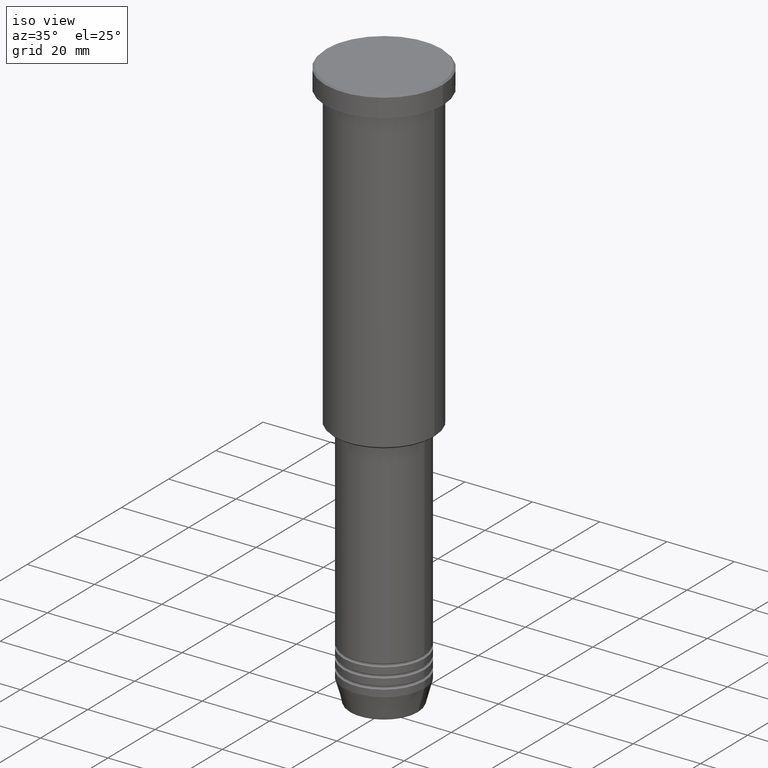
[diagram: clean part render]
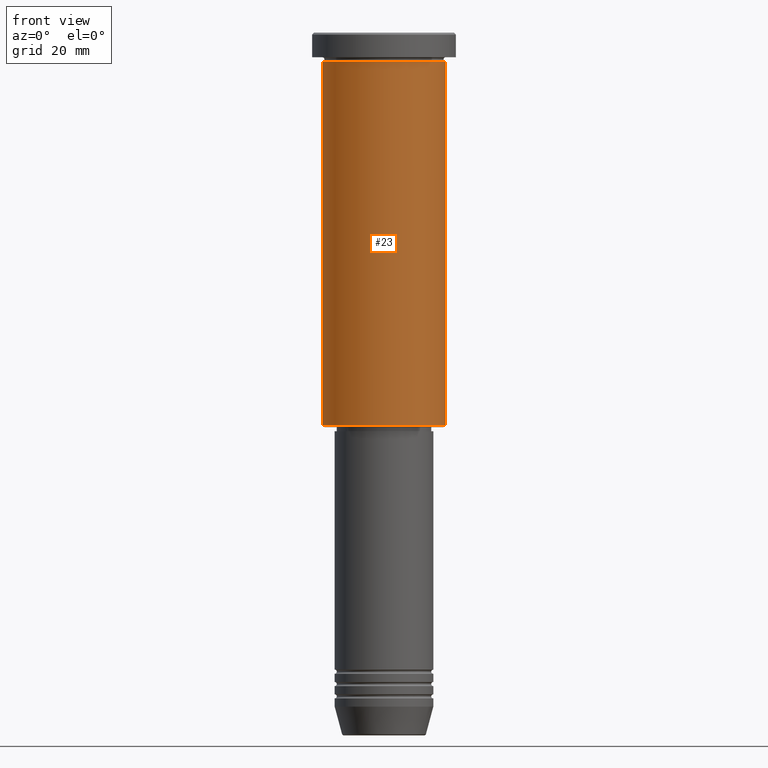
[diagram: tour spotlight — one face highlighted and labeled with its STEP entity id]
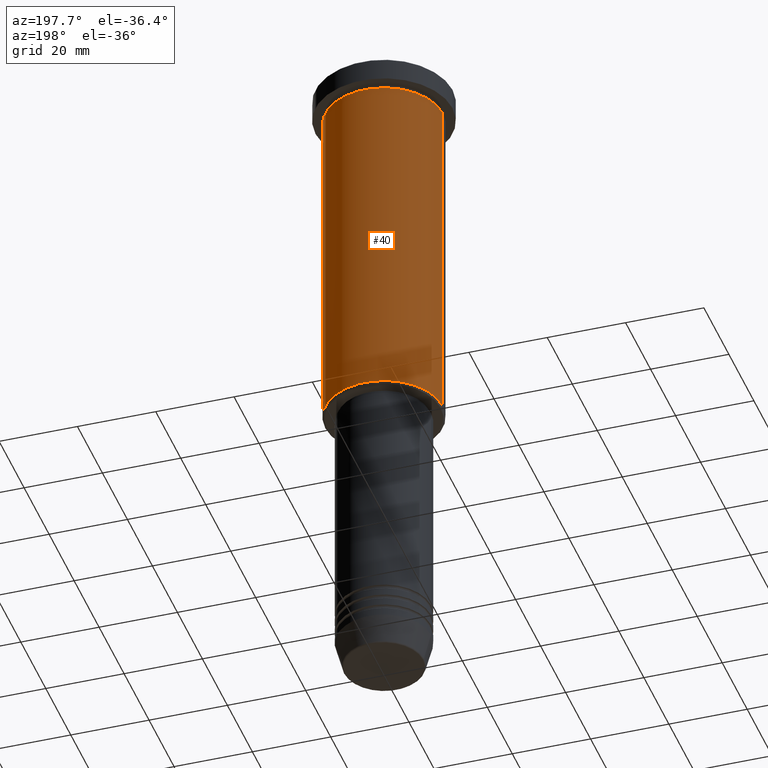
[diagram: tour spotlight — one face highlighted and labeled with its STEP entity id]
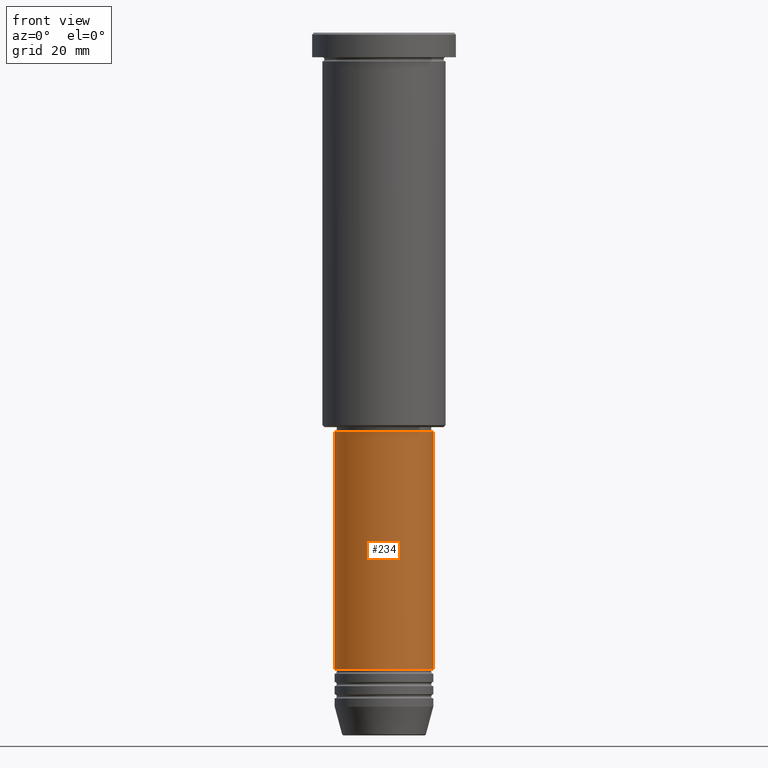
[diagram: tour spotlight — one face highlighted and labeled with its STEP entity id]
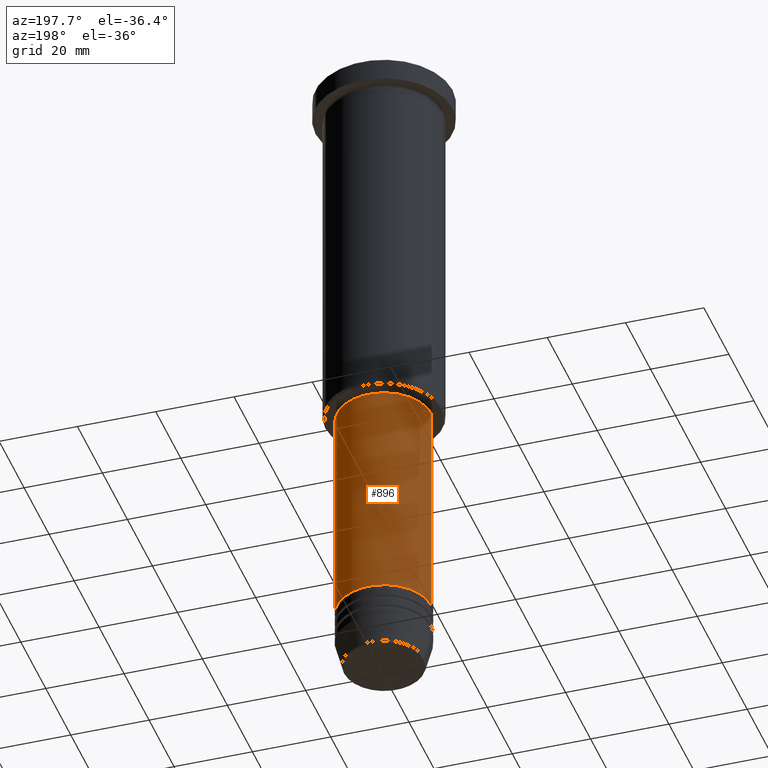
[diagram: tour spotlight — one face highlighted and labeled with its STEP entity id]
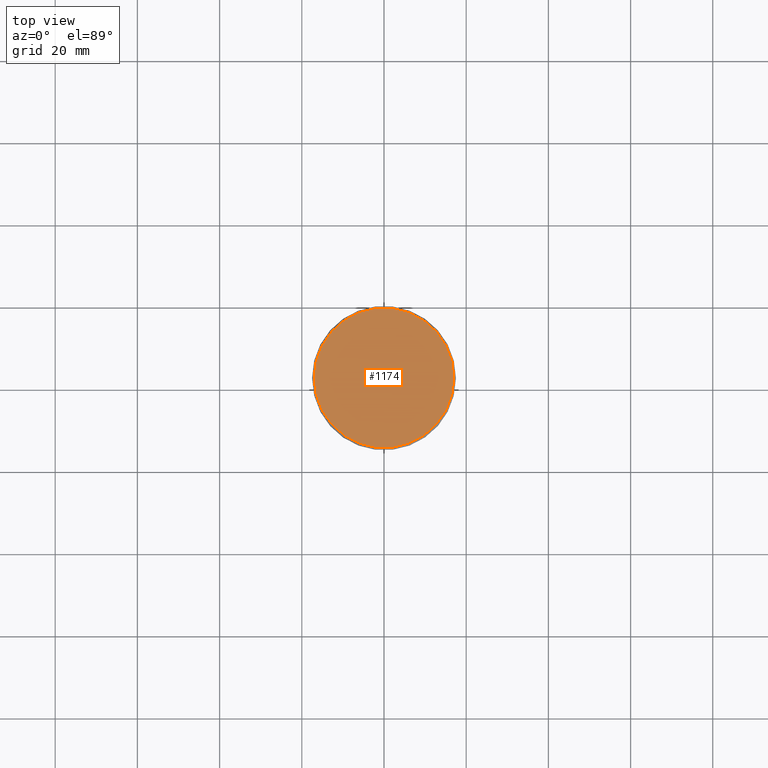
[diagram: tour spotlight — one face highlighted and labeled with its STEP entity id]
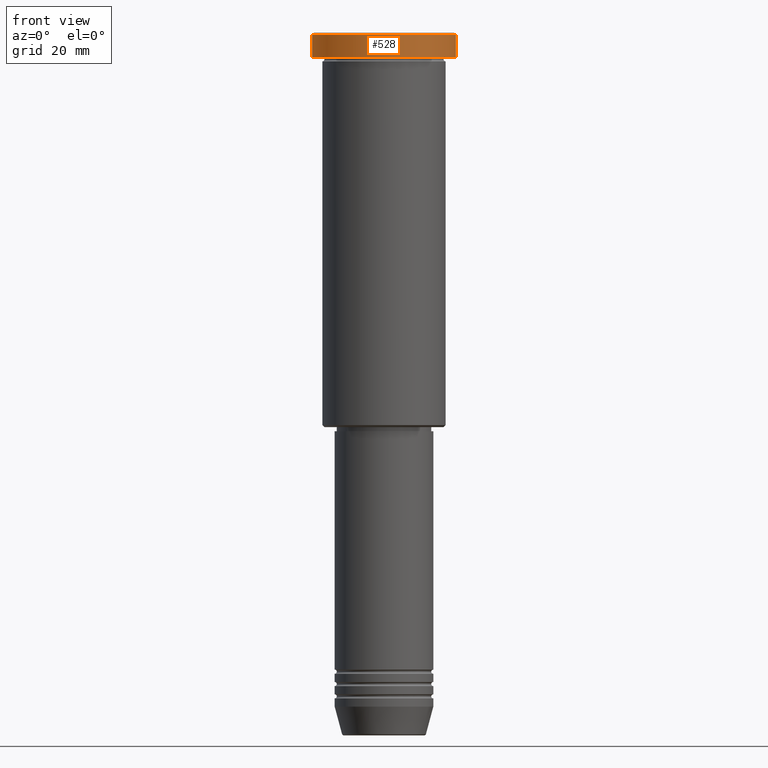
[diagram: tour spotlight — one face highlighted and labeled with its STEP entity id]
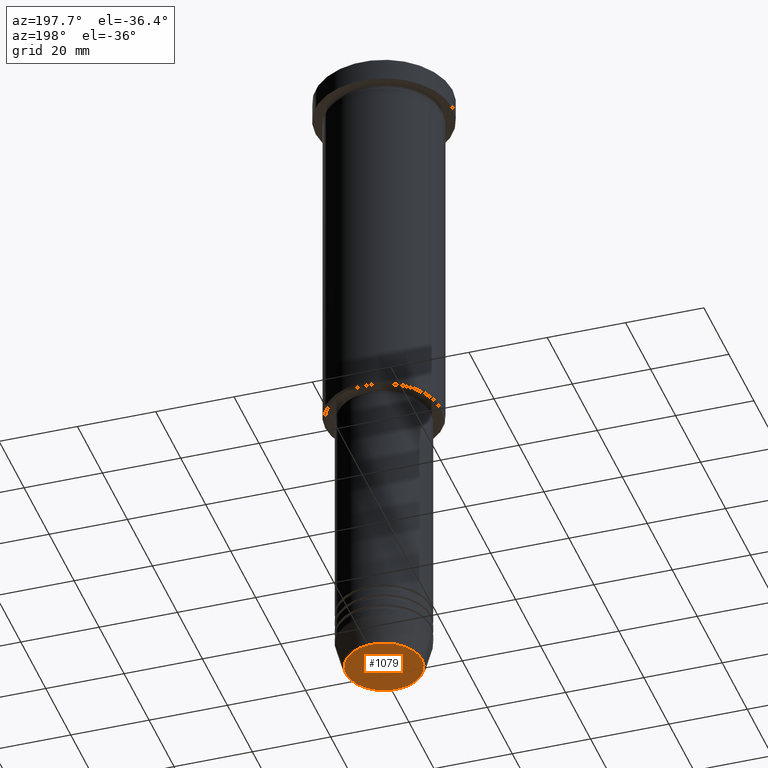
[diagram: tour spotlight — one face highlighted and labeled with its STEP entity id]
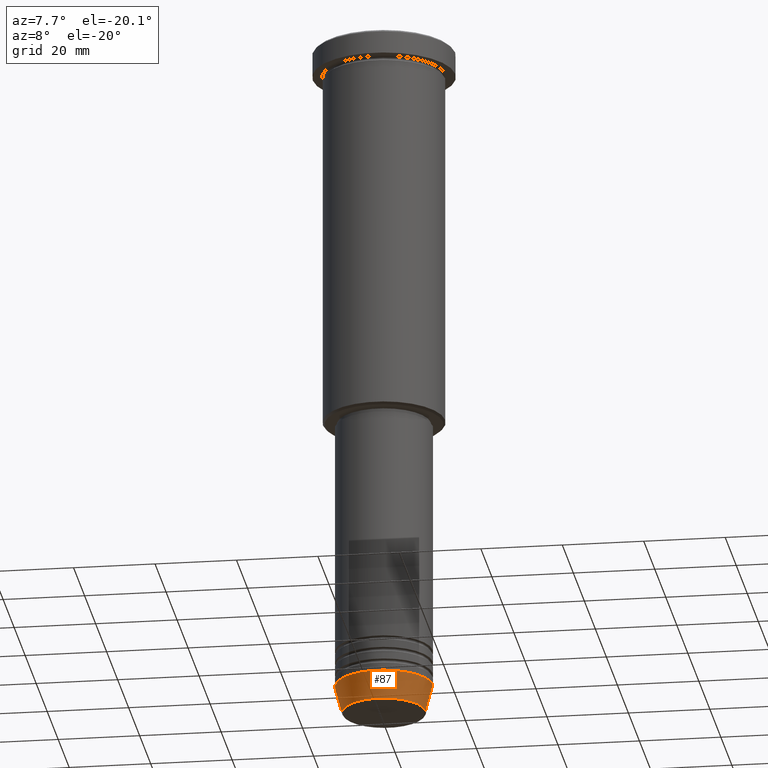
[diagram: tour spotlight — one face highlighted and labeled with its STEP entity id]
A machine part: a face-by-face anatomy tour. The part has 43 B-rep faces; the first image is the clean iso view, then the 8 largest visible faces are spotlighted one at a time (largest first), each with its STEP entity span.

Face 1 — front view, entity #23. In plain terms, the highlighted cylindrical surface (partial cylindrical patch) has radius 15 mm, axis along (-0, -0, 1).
Definition (entity closure, byte-faithful):
#4 = CARTESIAN_POINT ( 'NONE',  ( 0.000000000000000000, 0.000000000000000000, -95.50000000000001421 ) ) ;
#8 = VERTEX_POINT ( 'NONE', #741 ) ;
#9 = CARTESIAN_POINT ( 'NONE',  ( 15.00000000000000000, 0.000000000000000000, -6.999999999999995559 ) ) ;
#23 = ADVANCED_FACE ( 'NONE', ( #418 ), #881, .T. ) ;
#118 = AXIS2_PLACEMENT_3D ( 'NONE', #325, #773, #431 ) ;
#127 = DIRECTION ( 'NONE',  ( 1.000000000000000000, 0.000000000000000000, 0.000000000000000000 ) ) ;
#239 = EDGE_LOOP ( 'NONE', ( #983, #539, #1067, #394 ) ) ;
#240 = EDGE_CURVE ( 'NONE', #8, #443, #472, .T. ) ;
#291 = DIRECTION ( 'NONE',  ( -0.000000000000000000, -0.000000000000000000, 1.000000000000000000 ) ) ;
#325 = CARTESIAN_POINT ( 'NONE',  ( 0.000000000000000000, 0.000000000000000000, 0.000000000000000000 ) ) ;
#346 = DIRECTION ( 'NONE',  ( -0.000000000000000000, -0.000000000000000000, 1.000000000000000000 ) ) ;
#394 = ORIENTED_EDGE ( 'NONE', *, *, #1071, .F. ) ;
#401 = VERTEX_POINT ( 'NONE', #1116 ) ;
#418 = FACE_OUTER_BOUND ( 'NONE', #239, .T. ) ;
#431 = DIRECTION ( 'NONE',  ( 1.000000000000000000, 0.000000000000000000, 0.000000000000000000 ) ) ;
#436 = EDGE_CURVE ( 'NONE', #1029, #8, #984, .T. ) ;
#443 = VERTEX_POINT ( 'NONE', #9 ) ;
#472 = LINE ( 'NONE', #1128, #654 ) ;
#473 = CARTESIAN_POINT ( 'NONE',  ( -15.00000000000000000, 1.836970198721029589E-15, -95.50000000000001421 ) ) ;
#475 = DIRECTION ( 'NONE',  ( -1.000000000000000000, 0.000000000000000000, 0.000000000000000000 ) ) ;
#524 = AXIS2_PLACEMENT_3D ( 'NONE', #574, #1030, #127 ) ;
#539 = ORIENTED_EDGE ( 'NONE', *, *, #436, .T. ) ;
#574 = CARTESIAN_POINT ( 'NONE',  ( 0.000000000000000000, 0.000000000000000000, -6.999999999999995559 ) ) ;
#654 = VECTOR ( 'NONE', #1003, 1000.000000000000000 ) ;
#667 = AXIS2_PLACEMENT_3D ( 'NONE', #4, #291, #475 ) ;
#690 = VECTOR ( 'NONE', #346, 1000.000000000000000 ) ;
#741 = CARTESIAN_POINT ( 'NONE',  ( 15.00000000000000000, 0.000000000000000000, -95.50000000000001421 ) ) ;
#742 = EDGE_CURVE ( 'NONE', #1029, #401, #956, .T. ) ;
#773 = DIRECTION ( 'NONE',  ( -0.000000000000000000, -0.000000000000000000, 1.000000000000000000 ) ) ;
#880 = CARTESIAN_POINT ( 'NONE',  ( -15.00000000000000000, 1.836970198721029589E-15, 0.000000000000000000 ) ) ;
#881 = CYLINDRICAL_SURFACE ( 'NONE', #118, 15.00000000000000000 ) ;
#956 = LINE ( 'NONE', #880, #690 ) ;
#983 = ORIENTED_EDGE ( 'NONE', *, *, #742, .F. ) ;
#984 = CIRCLE ( 'NONE', #667, 15.00000000000000000 ) ;
#985 = CIRCLE ( 'NONE', #524, 15.00000000000000000 ) ;
#1003 = DIRECTION ( 'NONE',  ( -0.000000000000000000, -0.000000000000000000, 1.000000000000000000 ) ) ;
#1029 = VERTEX_POINT ( 'NONE', #473 ) ;
#1030 = DIRECTION ( 'NONE',  ( -0.000000000000000000, -0.000000000000000000, 1.000000000000000000 ) ) ;
#1067 = ORIENTED_EDGE ( 'NONE', *, *, #240, .T. ) ;
#1071 = EDGE_CURVE ( 'NONE', #401, #443, #985, .T. ) ;
#1116 = CARTESIAN_POINT ( 'NONE',  ( -15.00000000000000000, 1.836970198721029589E-15, -6.999999999999995559 ) ) ;
#1128 = CARTESIAN_POINT ( 'NONE',  ( 15.00000000000000000, 0.000000000000000000, 0.000000000000000000 ) ) ;

Face 2 — auxiliary view, entity #40. In plain terms, the highlighted cylindrical surface (partial cylindrical patch) has radius 15 mm, axis along (-0, -0, 1).
Definition (entity closure, byte-faithful):
#8 = VERTEX_POINT ( 'NONE', #741 ) ;
#9 = CARTESIAN_POINT ( 'NONE',  ( 15.00000000000000000, 0.000000000000000000, -6.999999999999995559 ) ) ;
#40 = ADVANCED_FACE ( 'NONE', ( #702 ), #1168, .T. ) ;
#98 = CARTESIAN_POINT ( 'NONE',  ( 0.000000000000000000, 0.000000000000000000, -6.999999999999995559 ) ) ;
#121 = AXIS2_PLACEMENT_3D ( 'NONE', #951, #523, #439 ) ;
#124 = DIRECTION ( 'NONE',  ( 1.000000000000000000, 0.000000000000000000, 0.000000000000000000 ) ) ;
#206 = DIRECTION ( 'NONE',  ( -0.000000000000000000, -0.000000000000000000, 1.000000000000000000 ) ) ;
#240 = EDGE_CURVE ( 'NONE', #8, #443, #472, .T. ) ;
#243 = CARTESIAN_POINT ( 'NONE',  ( 0.000000000000000000, 0.000000000000000000, 0.000000000000000000 ) ) ;
#257 = ORIENTED_EDGE ( 'NONE', *, *, #737, .T. ) ;
#346 = DIRECTION ( 'NONE',  ( -0.000000000000000000, -0.000000000000000000, 1.000000000000000000 ) ) ;
#348 = DIRECTION ( 'NONE',  ( -0.000000000000000000, -0.000000000000000000, 1.000000000000000000 ) ) ;
#401 = VERTEX_POINT ( 'NONE', #1116 ) ;
#428 = EDGE_CURVE ( 'NONE', #443, #401, #1157, .T. ) ;
#439 = DIRECTION ( 'NONE',  ( -1.000000000000000000, 0.000000000000000000, 0.000000000000000000 ) ) ;
#442 = EDGE_LOOP ( 'NONE', ( #257, #1082, #905, #617 ) ) ;
#443 = VERTEX_POINT ( 'NONE', #9 ) ;
#472 = LINE ( 'NONE', #1128, #654 ) ;
#473 = CARTESIAN_POINT ( 'NONE',  ( -15.00000000000000000, 1.836970198721029589E-15, -95.50000000000001421 ) ) ;
#523 = DIRECTION ( 'NONE',  ( -0.000000000000000000, -0.000000000000000000, 1.000000000000000000 ) ) ;
#617 = ORIENTED_EDGE ( 'NONE', *, *, #240, .F. ) ;
#639 = CIRCLE ( 'NONE', #121, 15.00000000000000000 ) ;
#654 = VECTOR ( 'NONE', #1003, 1000.000000000000000 ) ;
#690 = VECTOR ( 'NONE', #346, 1000.000000000000000 ) ;
#702 = FACE_OUTER_BOUND ( 'NONE', #442, .T. ) ;
#737 = EDGE_CURVE ( 'NONE', #8, #1029, #639, .T. ) ;
#741 = CARTESIAN_POINT ( 'NONE',  ( 15.00000000000000000, 0.000000000000000000, -95.50000000000001421 ) ) ;
#742 = EDGE_CURVE ( 'NONE', #1029, #401, #956, .T. ) ;
#880 = CARTESIAN_POINT ( 'NONE',  ( -15.00000000000000000, 1.836970198721029589E-15, 0.000000000000000000 ) ) ;
#905 = ORIENTED_EDGE ( 'NONE', *, *, #428, .F. ) ;
#951 = CARTESIAN_POINT ( 'NONE',  ( 0.000000000000000000, 0.000000000000000000, -95.50000000000001421 ) ) ;
#956 = LINE ( 'NONE', #880, #690 ) ;
#1003 = DIRECTION ( 'NONE',  ( -0.000000000000000000, -0.000000000000000000, 1.000000000000000000 ) ) ;
#1029 = VERTEX_POINT ( 'NONE', #473 ) ;
#1082 = ORIENTED_EDGE ( 'NONE', *, *, #742, .T. ) ;
#1085 = AXIS2_PLACEMENT_3D ( 'NONE', #98, #206, #124 ) ;
#1116 = CARTESIAN_POINT ( 'NONE',  ( -15.00000000000000000, 1.836970198721029589E-15, -6.999999999999995559 ) ) ;
#1121 = AXIS2_PLACEMENT_3D ( 'NONE', #243, #348, #1146 ) ;
#1128 = CARTESIAN_POINT ( 'NONE',  ( 15.00000000000000000, 0.000000000000000000, 0.000000000000000000 ) ) ;
#1146 = DIRECTION ( 'NONE',  ( 1.000000000000000000, 0.000000000000000000, 0.000000000000000000 ) ) ;
#1157 = CIRCLE ( 'NONE', #1085, 15.00000000000000000 ) ;
#1168 = CYLINDRICAL_SURFACE ( 'NONE', #1121, 15.00000000000000000 ) ;

Face 3 — front view, entity #234. In plain terms, the highlighted cylindrical surface (partial cylindrical patch) has radius 12 mm, axis along (-0, -0, 1).
Definition (entity closure, byte-faithful):
#1 = DIRECTION ( 'NONE',  ( -0.000000000000000000, -0.000000000000000000, 1.000000000000000000 ) ) ;
#29 = ORIENTED_EDGE ( 'NONE', *, *, #888, .F. ) ;
#36 = VECTOR ( 'NONE', #508, 1000.000000000000000 ) ;
#78 = CIRCLE ( 'NONE', #619, 12.00000000000000000 ) ;
#111 = CARTESIAN_POINT ( 'NONE',  ( 0.000000000000000000, 0.000000000000000000, -154.9999999999999716 ) ) ;
#234 = ADVANCED_FACE ( 'NONE', ( #550 ), #921, .T. ) ;
#252 = ORIENTED_EDGE ( 'NONE', *, *, #313, .T. ) ;
#311 = DIRECTION ( 'NONE',  ( -0.000000000000000000, -0.000000000000000000, 1.000000000000000000 ) ) ;
#313 = EDGE_CURVE ( 'NONE', #751, #911, #78, .T. ) ;
#331 = CARTESIAN_POINT ( 'NONE',  ( 0.000000000000000000, 0.000000000000000000, -97.00000000000000000 ) ) ;
#378 = AXIS2_PLACEMENT_3D ( 'NONE', #820, #311, #391 ) ;
#391 = DIRECTION ( 'NONE',  ( 1.000000000000000000, 0.000000000000000000, 0.000000000000000000 ) ) ;
#397 = CIRCLE ( 'NONE', #566, 12.00000000000000000 ) ;
#417 = DIRECTION ( 'NONE',  ( 1.000000000000000000, 0.000000000000000000, 0.000000000000000000 ) ) ;
#424 = CARTESIAN_POINT ( 'NONE',  ( -12.00000000000000000, 1.469576158976823947E-15, -154.9999999999999716 ) ) ;
#456 = DIRECTION ( 'NONE',  ( -0.000000000000000000, -0.000000000000000000, 1.000000000000000000 ) ) ;
#495 = VERTEX_POINT ( 'NONE', #1143 ) ;
#501 = DIRECTION ( 'NONE',  ( -0.000000000000000000, -0.000000000000000000, 1.000000000000000000 ) ) ;
#508 = DIRECTION ( 'NONE',  ( -0.000000000000000000, -0.000000000000000000, 1.000000000000000000 ) ) ;
#550 = FACE_OUTER_BOUND ( 'NONE', #650, .T. ) ;
#551 = CARTESIAN_POINT ( 'NONE',  ( -12.00000000000000000, 1.469576158976823947E-15, 0.000000000000000000 ) ) ;
#566 = AXIS2_PLACEMENT_3D ( 'NONE', #331, #501, #417 ) ;
#619 = AXIS2_PLACEMENT_3D ( 'NONE', #111, #456, #1075 ) ;
#645 = CARTESIAN_POINT ( 'NONE',  ( 12.00000000000000000, 0.000000000000000000, -154.9999999999999716 ) ) ;
#650 = EDGE_LOOP ( 'NONE', ( #29, #252, #1169, #705 ) ) ;
#704 = EDGE_CURVE ( 'NONE', #744, #495, #397, .T. ) ;
#705 = ORIENTED_EDGE ( 'NONE', *, *, #704, .F. ) ;
#744 = VERTEX_POINT ( 'NONE', #1077 ) ;
#745 = EDGE_CURVE ( 'NONE', #911, #495, #869, .T. ) ;
#751 = VERTEX_POINT ( 'NONE', #424 ) ;
#820 = CARTESIAN_POINT ( 'NONE',  ( 0.000000000000000000, 0.000000000000000000, 0.000000000000000000 ) ) ;
#869 = LINE ( 'NONE', #1171, #36 ) ;
#888 = EDGE_CURVE ( 'NONE', #751, #744, #1094, .T. ) ;
#900 = VECTOR ( 'NONE', #1, 1000.000000000000000 ) ;
#911 = VERTEX_POINT ( 'NONE', #645 ) ;
#921 = CYLINDRICAL_SURFACE ( 'NONE', #378, 12.00000000000000000 ) ;
#1075 = DIRECTION ( 'NONE',  ( 1.000000000000000000, 0.000000000000000000, 0.000000000000000000 ) ) ;
#1077 = CARTESIAN_POINT ( 'NONE',  ( -12.00000000000000000, 1.469576158976823947E-15, -97.00000000000000000 ) ) ;
#1094 = LINE ( 'NONE', #551, #900 ) ;
#1143 = CARTESIAN_POINT ( 'NONE',  ( 12.00000000000000000, 0.000000000000000000, -97.00000000000000000 ) ) ;
#1169 = ORIENTED_EDGE ( 'NONE', *, *, #745, .T. ) ;
#1171 = CARTESIAN_POINT ( 'NONE',  ( 12.00000000000000000, 0.000000000000000000, 0.000000000000000000 ) ) ;

Face 4 — auxiliary view, entity #896. In plain terms, the highlighted cylindrical surface (partial cylindrical patch) has radius 12 mm, axis along (-0, -0, 1).
Definition (entity closure, byte-faithful):
#1 = DIRECTION ( 'NONE',  ( -0.000000000000000000, -0.000000000000000000, 1.000000000000000000 ) ) ;
#36 = VECTOR ( 'NONE', #508, 1000.000000000000000 ) ;
#62 = EDGE_LOOP ( 'NONE', ( #469, #877, #503, #891 ) ) ;
#108 = FACE_OUTER_BOUND ( 'NONE', #62, .T. ) ;
#191 = DIRECTION ( 'NONE',  ( 1.000000000000000000, 0.000000000000000000, 0.000000000000000000 ) ) ;
#198 = AXIS2_PLACEMENT_3D ( 'NONE', #840, #230, #480 ) ;
#230 = DIRECTION ( 'NONE',  ( -0.000000000000000000, -0.000000000000000000, 1.000000000000000000 ) ) ;
#250 = CIRCLE ( 'NONE', #198, 12.00000000000000000 ) ;
#302 = EDGE_CURVE ( 'NONE', #495, #744, #1104, .T. ) ;
#424 = CARTESIAN_POINT ( 'NONE',  ( -12.00000000000000000, 1.469576158976823947E-15, -154.9999999999999716 ) ) ;
#469 = ORIENTED_EDGE ( 'NONE', *, *, #1043, .T. ) ;
#480 = DIRECTION ( 'NONE',  ( 1.000000000000000000, 0.000000000000000000, 0.000000000000000000 ) ) ;
#495 = VERTEX_POINT ( 'NONE', #1143 ) ;
#503 = ORIENTED_EDGE ( 'NONE', *, *, #302, .F. ) ;
#508 = DIRECTION ( 'NONE',  ( -0.000000000000000000, -0.000000000000000000, 1.000000000000000000 ) ) ;
#551 = CARTESIAN_POINT ( 'NONE',  ( -12.00000000000000000, 1.469576158976823947E-15, 0.000000000000000000 ) ) ;
#554 = CARTESIAN_POINT ( 'NONE',  ( 0.000000000000000000, 0.000000000000000000, 0.000000000000000000 ) ) ;
#575 = AXIS2_PLACEMENT_3D ( 'NONE', #904, #643, #698 ) ;
#630 = CYLINDRICAL_SURFACE ( 'NONE', #1086, 12.00000000000000000 ) ;
#643 = DIRECTION ( 'NONE',  ( -0.000000000000000000, -0.000000000000000000, 1.000000000000000000 ) ) ;
#645 = CARTESIAN_POINT ( 'NONE',  ( 12.00000000000000000, 0.000000000000000000, -154.9999999999999716 ) ) ;
#698 = DIRECTION ( 'NONE',  ( 1.000000000000000000, 0.000000000000000000, 0.000000000000000000 ) ) ;
#744 = VERTEX_POINT ( 'NONE', #1077 ) ;
#745 = EDGE_CURVE ( 'NONE', #911, #495, #869, .T. ) ;
#751 = VERTEX_POINT ( 'NONE', #424 ) ;
#840 = CARTESIAN_POINT ( 'NONE',  ( 0.000000000000000000, 0.000000000000000000, -154.9999999999999716 ) ) ;
#869 = LINE ( 'NONE', #1171, #36 ) ;
#877 = ORIENTED_EDGE ( 'NONE', *, *, #888, .T. ) ;
#888 = EDGE_CURVE ( 'NONE', #751, #744, #1094, .T. ) ;
#891 = ORIENTED_EDGE ( 'NONE', *, *, #745, .F. ) ;
#896 = ADVANCED_FACE ( 'NONE', ( #108 ), #630, .T. ) ;
#900 = VECTOR ( 'NONE', #1, 1000.000000000000000 ) ;
#904 = CARTESIAN_POINT ( 'NONE',  ( 0.000000000000000000, 0.000000000000000000, -97.00000000000000000 ) ) ;
#911 = VERTEX_POINT ( 'NONE', #645 ) ;
#996 = DIRECTION ( 'NONE',  ( -0.000000000000000000, -0.000000000000000000, 1.000000000000000000 ) ) ;
#1043 = EDGE_CURVE ( 'NONE', #911, #751, #250, .T. ) ;
#1077 = CARTESIAN_POINT ( 'NONE',  ( -12.00000000000000000, 1.469576158976823947E-15, -97.00000000000000000 ) ) ;
#1086 = AXIS2_PLACEMENT_3D ( 'NONE', #554, #996, #191 ) ;
#1094 = LINE ( 'NONE', #551, #900 ) ;
#1104 = CIRCLE ( 'NONE', #575, 12.00000000000000000 ) ;
#1143 = CARTESIAN_POINT ( 'NONE',  ( 12.00000000000000000, 0.000000000000000000, -97.00000000000000000 ) ) ;
#1171 = CARTESIAN_POINT ( 'NONE',  ( 12.00000000000000000, 0.000000000000000000, 0.000000000000000000 ) ) ;

Face 5 — top view, entity #1174. In plain terms, the highlighted planar face has unit normal (0, -0, 1).
Definition (entity closure, byte-faithful):
#71 = CARTESIAN_POINT ( 'NONE',  ( 0.000000000000000000, 0.000000000000000000, 0.000000000000000000 ) ) ;
#86 = FACE_OUTER_BOUND ( 'NONE', #1092, .T. ) ;
#153 = AXIS2_PLACEMENT_3D ( 'NONE', #1076, #235, #172 ) ;
#172 = DIRECTION ( 'NONE',  ( 1.000000000000000000, 0.000000000000000000, 0.000000000000000000 ) ) ;
#194 = EDGE_CURVE ( 'NONE', #368, #371, #786, .T. ) ;
#235 = DIRECTION ( 'NONE',  ( 0.000000000000000000, -0.000000000000000000, 1.000000000000000000 ) ) ;
#249 = CARTESIAN_POINT ( 'NONE',  ( -17.00000000000001421, 0.000000000000000000, 0.000000000000000000 ) ) ;
#309 = DIRECTION ( 'NONE',  ( 1.000000000000000000, 0.000000000000000000, 0.000000000000000000 ) ) ;
#368 = VERTEX_POINT ( 'NONE', #249 ) ;
#371 = VERTEX_POINT ( 'NONE', #468 ) ;
#400 = DIRECTION ( 'NONE',  ( -0.000000000000000000, -0.000000000000000000, 1.000000000000000000 ) ) ;
#423 = PLANE ( 'NONE',  #153 ) ;
#455 = AXIS2_PLACEMENT_3D ( 'NONE', #1132, #400, #309 ) ;
#468 = CARTESIAN_POINT ( 'NONE',  ( 17.00000000000001421, 2.112515728529185250E-15, 0.000000000000000000 ) ) ;
#491 = DIRECTION ( 'NONE',  ( 1.000000000000000000, 0.000000000000000000, 0.000000000000000000 ) ) ;
#576 = ORIENTED_EDGE ( 'NONE', *, *, #194, .T. ) ;
#786 = CIRCLE ( 'NONE', #1059, 17.00000000000001421 ) ;
#901 = CIRCLE ( 'NONE', #455, 17.00000000000001421 ) ;
#945 = DIRECTION ( 'NONE',  ( -0.000000000000000000, -0.000000000000000000, 1.000000000000000000 ) ) ;
#1036 = EDGE_CURVE ( 'NONE', #371, #368, #901, .T. ) ;
#1059 = AXIS2_PLACEMENT_3D ( 'NONE', #71, #945, #491 ) ;
#1076 = CARTESIAN_POINT ( 'NONE',  ( 0.000000000000000000, 0.000000000000000000, 0.000000000000000000 ) ) ;
#1092 = EDGE_LOOP ( 'NONE', ( #576, #1115 ) ) ;
#1115 = ORIENTED_EDGE ( 'NONE', *, *, #1036, .T. ) ;
#1132 = CARTESIAN_POINT ( 'NONE',  ( 0.000000000000000000, 0.000000000000000000, 0.000000000000000000 ) ) ;
#1174 = ADVANCED_FACE ( 'NONE', ( #86 ), #423, .T. ) ;

Face 6 — front view, entity #528. In plain terms, the highlighted cylindrical surface (partial cylindrical patch) has radius 17.5 mm, axis along (-0, -0, 1).
Definition (entity closure, byte-faithful):
#44 = CARTESIAN_POINT ( 'NONE',  ( 17.50000000000000000, 0.000000000000000000, -0.4999999999999727995 ) ) ;
#48 = EDGE_LOOP ( 'NONE', ( #672, #466, #847, #103 ) ) ;
#65 = DIRECTION ( 'NONE',  ( -0.000000000000000000, -0.000000000000000000, 1.000000000000000000 ) ) ;
#73 = CARTESIAN_POINT ( 'NONE',  ( -17.50000000000000000, 2.143131898507868248E-15, -5.999999999999995559 ) ) ;
#77 = EDGE_CURVE ( 'NONE', #562, #156, #855, .T. ) ;
#102 = CARTESIAN_POINT ( 'NONE',  ( -17.50000000000000000, 2.143131898507868248E-15, -0.4999999999999727995 ) ) ;
#103 = ORIENTED_EDGE ( 'NONE', *, *, #353, .T. ) ;
#152 = DIRECTION ( 'NONE',  ( 0.000000000000000000, 0.000000000000000000, -1.000000000000000000 ) ) ;
#156 = VERTEX_POINT ( 'NONE', #102 ) ;
#210 = CARTESIAN_POINT ( 'NONE',  ( 17.50000000000000000, 0.000000000000000000, 0.000000000000000000 ) ) ;
#255 = CARTESIAN_POINT ( 'NONE',  ( 17.50000000000000000, 0.000000000000000000, -5.999999999999995559 ) ) ;
#318 = DIRECTION ( 'NONE',  ( -0.000000000000000000, -0.000000000000000000, 1.000000000000000000 ) ) ;
#334 = DIRECTION ( 'NONE',  ( 1.000000000000000000, 0.000000000000000000, 0.000000000000000000 ) ) ;
#353 = EDGE_CURVE ( 'NONE', #1064, #156, #561, .T. ) ;
#466 = ORIENTED_EDGE ( 'NONE', *, *, #709, .T. ) ;
#470 = VECTOR ( 'NONE', #568, 1000.000000000000000 ) ;
#528 = ADVANCED_FACE ( 'NONE', ( #852 ), #1131, .T. ) ;
#561 = CIRCLE ( 'NONE', #620, 17.50000000000000000 ) ;
#562 = VERTEX_POINT ( 'NONE', #73 ) ;
#568 = DIRECTION ( 'NONE',  ( -0.000000000000000000, -0.000000000000000000, 1.000000000000000000 ) ) ;
#601 = CARTESIAN_POINT ( 'NONE',  ( 0.000000000000000000, 0.000000000000000000, -0.4999999999999727995 ) ) ;
#620 = AXIS2_PLACEMENT_3D ( 'NONE', #601, #152, #693 ) ;
#627 = LINE ( 'NONE', #210, #470 ) ;
#672 = ORIENTED_EDGE ( 'NONE', *, *, #77, .F. ) ;
#687 = VERTEX_POINT ( 'NONE', #255 ) ;
#693 = DIRECTION ( 'NONE',  ( 1.000000000000000000, 0.000000000000000000, 0.000000000000000000 ) ) ;
#701 = CARTESIAN_POINT ( 'NONE',  ( 0.000000000000000000, 0.000000000000000000, -5.999999999999995559 ) ) ;
#709 = EDGE_CURVE ( 'NONE', #562, #687, #789, .T. ) ;
#763 = CARTESIAN_POINT ( 'NONE',  ( 0.000000000000000000, 0.000000000000000000, 0.000000000000000000 ) ) ;
#789 = CIRCLE ( 'NONE', #1025, 17.50000000000000000 ) ;
#845 = AXIS2_PLACEMENT_3D ( 'NONE', #763, #318, #334 ) ;
#847 = ORIENTED_EDGE ( 'NONE', *, *, #968, .T. ) ;
#852 = FACE_OUTER_BOUND ( 'NONE', #48, .T. ) ;
#855 = LINE ( 'NONE', #1072, #1137 ) ;
#862 = DIRECTION ( 'NONE',  ( -0.000000000000000000, -0.000000000000000000, 1.000000000000000000 ) ) ;
#968 = EDGE_CURVE ( 'NONE', #687, #1064, #627, .T. ) ;
#1025 = AXIS2_PLACEMENT_3D ( 'NONE', #701, #65, #1165 ) ;
#1064 = VERTEX_POINT ( 'NONE', #44 ) ;
#1072 = CARTESIAN_POINT ( 'NONE',  ( -17.50000000000000000, 2.143131898507868248E-15, 0.000000000000000000 ) ) ;
#1131 = CYLINDRICAL_SURFACE ( 'NONE', #845, 17.50000000000000000 ) ;
#1137 = VECTOR ( 'NONE', #862, 1000.000000000000000 ) ;
#1165 = DIRECTION ( 'NONE',  ( 1.000000000000000000, 0.000000000000000000, 0.000000000000000000 ) ) ;

Face 7 — auxiliary view, entity #1079. In plain terms, the highlighted planar face has unit normal (0, -0, 1).
Definition (entity closure, byte-faithful):
#15 = CARTESIAN_POINT ( 'NONE',  ( -9.740692158992667160, 1.222463696683475393E-15, -170.9999999999999716 ) ) ;
#58 = AXIS2_PLACEMENT_3D ( 'NONE', #403, #653, #757 ) ;
#116 = CARTESIAN_POINT ( 'NONE',  ( 9.740692158992667160, 0.000000000000000000, -170.9999999999999716 ) ) ;
#190 = DIRECTION ( 'NONE',  ( 0.000000000000000000, 0.000000000000000000, -1.000000000000000000 ) ) ;
#221 = EDGE_CURVE ( 'NONE', #449, #294, #748, .T. ) ;
#270 = CARTESIAN_POINT ( 'NONE',  ( 0.000000000000000000, 0.000000000000000000, -170.9999999999999716 ) ) ;
#272 = EDGE_LOOP ( 'NONE', ( #661, #590 ) ) ;
#276 = DIRECTION ( 'NONE',  ( 1.000000000000000000, 0.000000000000000000, 0.000000000000000000 ) ) ;
#286 = AXIS2_PLACEMENT_3D ( 'NONE', #713, #190, #1089 ) ;
#294 = VERTEX_POINT ( 'NONE', #116 ) ;
#298 = PLANE ( 'NONE',  #58 ) ;
#403 = CARTESIAN_POINT ( 'NONE',  ( 0.000000000000000000, 0.000000000000000000, -170.9999999999999716 ) ) ;
#449 = VERTEX_POINT ( 'NONE', #15 ) ;
#484 = CIRCLE ( 'NONE', #830, 9.740692158992667160 ) ;
#590 = ORIENTED_EDGE ( 'NONE', *, *, #221, .T. ) ;
#653 = DIRECTION ( 'NONE',  ( 0.000000000000000000, -0.000000000000000000, 1.000000000000000000 ) ) ;
#661 = ORIENTED_EDGE ( 'NONE', *, *, #943, .T. ) ;
#713 = CARTESIAN_POINT ( 'NONE',  ( 0.000000000000000000, 0.000000000000000000, -170.9999999999999716 ) ) ;
#748 = CIRCLE ( 'NONE', #286, 9.740692158992667160 ) ;
#757 = DIRECTION ( 'NONE',  ( 1.000000000000000000, 0.000000000000000000, 0.000000000000000000 ) ) ;
#830 = AXIS2_PLACEMENT_3D ( 'NONE', #270, #894, #276 ) ;
#894 = DIRECTION ( 'NONE',  ( 0.000000000000000000, 0.000000000000000000, -1.000000000000000000 ) ) ;
#936 = FACE_OUTER_BOUND ( 'NONE', #272, .T. ) ;
#943 = EDGE_CURVE ( 'NONE', #294, #449, #484, .T. ) ;
#1079 = ADVANCED_FACE ( 'NONE', ( #936 ), #298, .F. ) ;
#1089 = DIRECTION ( 'NONE',  ( 1.000000000000000000, 0.000000000000000000, 0.000000000000000000 ) ) ;

Face 8 — auxiliary view, entity #87. In plain terms, the highlighted conical surface has half-angle 15 deg.
Definition (entity closure, byte-faithful):
#17 = VECTOR ( 'NONE', #818, 1000.000000000000000 ) ;
#22 = EDGE_LOOP ( 'NONE', ( #497, #1007, #201, #246 ) ) ;
#27 = DIRECTION ( 'NONE',  ( 1.000000000000000000, 0.000000000000000000, 0.000000000000000000 ) ) ;
#47 = DIRECTION ( 'NONE',  ( 1.000000000000000000, 0.000000000000000000, 0.000000000000000000 ) ) ;
#56 = FACE_OUTER_BOUND ( 'NONE', #22, .T. ) ;
#85 = VERTEX_POINT ( 'NONE', #779 ) ;
#87 = ADVANCED_FACE ( 'NONE', ( #56 ), #766, .T. ) ;
#155 = DIRECTION ( 'NONE',  ( -0.000000000000000000, -0.000000000000000000, 1.000000000000000000 ) ) ;
#188 = CARTESIAN_POINT ( 'NONE',  ( 12.00000000000000000, 0.000000000000000000, -164.0000000000000000 ) ) ;
#201 = ORIENTED_EDGE ( 'NONE', *, *, #409, .T. ) ;
#225 = DIRECTION ( 'NONE',  ( -0.2588190451025213501, 3.169619151431772337E-17, 0.9659258262890680902 ) ) ;
#232 = AXIS2_PLACEMENT_3D ( 'NONE', #924, #490, #27 ) ;
#246 = ORIENTED_EDGE ( 'NONE', *, *, #986, .F. ) ;
#300 = LINE ( 'NONE', #188, #17 ) ;
#308 = CIRCLE ( 'NONE', #846, 10.22365507213719660 ) ;
#395 = VECTOR ( 'NONE', #225, 1000.000000000000000 ) ;
#409 = EDGE_CURVE ( 'NONE', #506, #684, #300, .T. ) ;
#416 = CIRCLE ( 'NONE', #232, 12.00000000000000000 ) ;
#458 = EDGE_CURVE ( 'NONE', #1147, #85, #1045, .T. ) ;
#490 = DIRECTION ( 'NONE',  ( -0.000000000000000000, -0.000000000000000000, 1.000000000000000000 ) ) ;
#497 = ORIENTED_EDGE ( 'NONE', *, *, #458, .F. ) ;
#506 = VERTEX_POINT ( 'NONE', #759 ) ;
#582 = CARTESIAN_POINT ( 'NONE',  ( -12.00000000000000000, 1.469576158976823947E-15, -164.0000000000000000 ) ) ;
#684 = VERTEX_POINT ( 'NONE', #1070 ) ;
#739 = DIRECTION ( 'NONE',  ( -0.000000000000000000, -0.000000000000000000, 1.000000000000000000 ) ) ;
#759 = CARTESIAN_POINT ( 'NONE',  ( 10.22365507213719660, 0.000000000000000000, -170.6294095225512706 ) ) ;
#766 = CONICAL_SURFACE ( 'NONE', #1178, 12.00000000000000000, 0.2617993877991500740 ) ;
#779 = CARTESIAN_POINT ( 'NONE',  ( -12.00000000000000000, 1.469576158976823947E-15, -164.0000000000000000 ) ) ;
#782 = CARTESIAN_POINT ( 'NONE',  ( -10.22365507213719837, 1.360806402472383336E-15, -170.6294095225512706 ) ) ;
#818 = DIRECTION ( 'NONE',  ( 0.2588190451025213501, 0.000000000000000000, 0.9659258262890680902 ) ) ;
#846 = AXIS2_PLACEMENT_3D ( 'NONE', #1013, #739, #916 ) ;
#875 = CARTESIAN_POINT ( 'NONE',  ( 0.000000000000000000, 0.000000000000000000, -164.0000000000000000 ) ) ;
#915 = EDGE_CURVE ( 'NONE', #1147, #506, #308, .T. ) ;
#916 = DIRECTION ( 'NONE',  ( 1.000000000000000000, 0.000000000000000000, 0.000000000000000000 ) ) ;
#924 = CARTESIAN_POINT ( 'NONE',  ( 0.000000000000000000, 0.000000000000000000, -164.0000000000000000 ) ) ;
#986 = EDGE_CURVE ( 'NONE', #85, #684, #416, .T. ) ;
#1007 = ORIENTED_EDGE ( 'NONE', *, *, #915, .T. ) ;
#1013 = CARTESIAN_POINT ( 'NONE',  ( 0.000000000000000000, 0.000000000000000000, -170.6294095225512706 ) ) ;
#1045 = LINE ( 'NONE', #582, #395 ) ;
#1070 = CARTESIAN_POINT ( 'NONE',  ( 12.00000000000000000, 0.000000000000000000, -164.0000000000000000 ) ) ;
#1147 = VERTEX_POINT ( 'NONE', #782 ) ;
#1178 = AXIS2_PLACEMENT_3D ( 'NONE', #875, #155, #47 ) ;